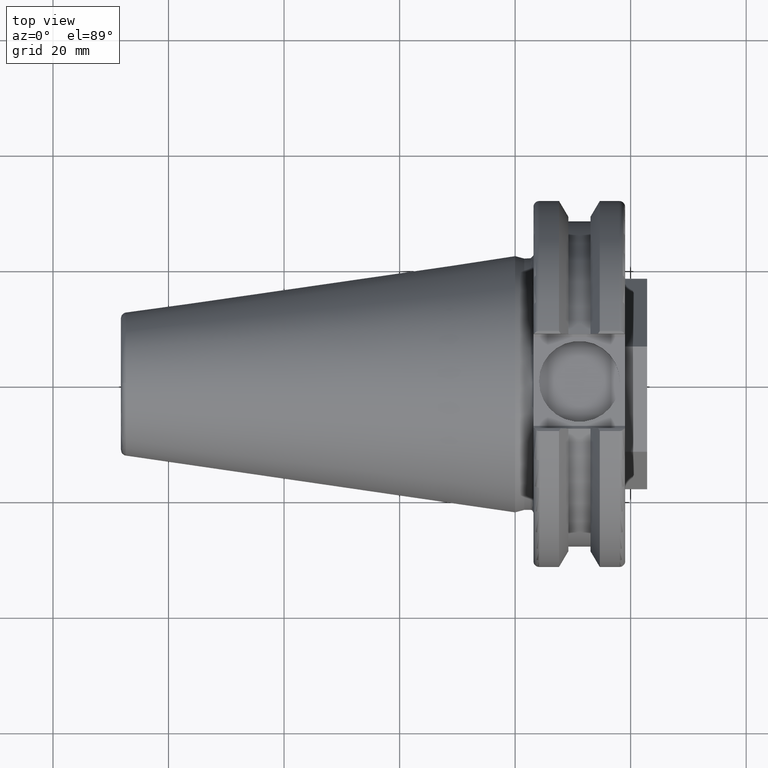
[diagram: clean part render]
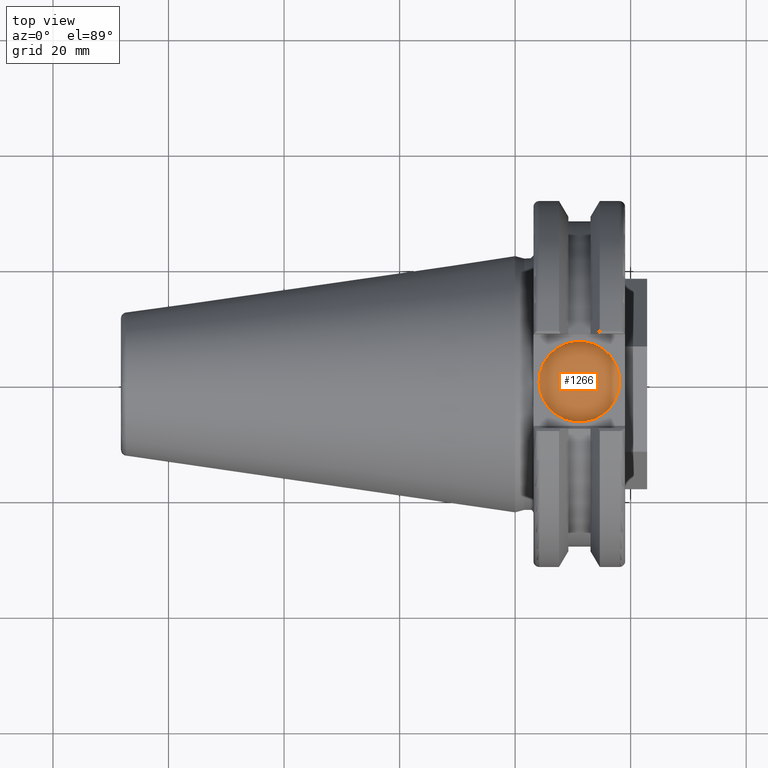
[diagram: same view with one face highlighted and labeled with its STEP entity id]
A machine part, top view. The second image highlights one B-rep face of the part: STEP entity #1266.
In plain terms, the highlighted planar face has unit normal (0, 0, 1).
Its self-contained STEP definition (entity closure, byte-faithful):
#102=PLANE('',#1442);
#172=FACE_OUTER_BOUND('',#253,.T.);
#253=EDGE_LOOP('',(#1064));
#508=CIRCLE('',#1441,7.);
#626=VERTEX_POINT('',#2269);
#786=EDGE_CURVE('',#626,#626,#508,.T.);
#1064=ORIENTED_EDGE('',*,*,#786,.T.);
#1266=ADVANCED_FACE('',(#172),#102,.T.);
#1441=AXIS2_PLACEMENT_3D('',#2271,#1724,#1725);
#1442=AXIS2_PLACEMENT_3D('',#2272,#1726,#1727);
#1724=DIRECTION('center_axis',(0.,0.,1.));
#1725=DIRECTION('ref_axis',(1.,0.,0.));
#1726=DIRECTION('center_axis',(0.,0.,1.));
#1727=DIRECTION('ref_axis',(1.,0.,0.));
#2269=CARTESIAN_POINT('',(4.127,-8.57252759403147E-16,21.8));
#2271=CARTESIAN_POINT('Origin',(11.127,0.,21.8));
#2272=CARTESIAN_POINT('Origin',(11.127,0.,21.8));